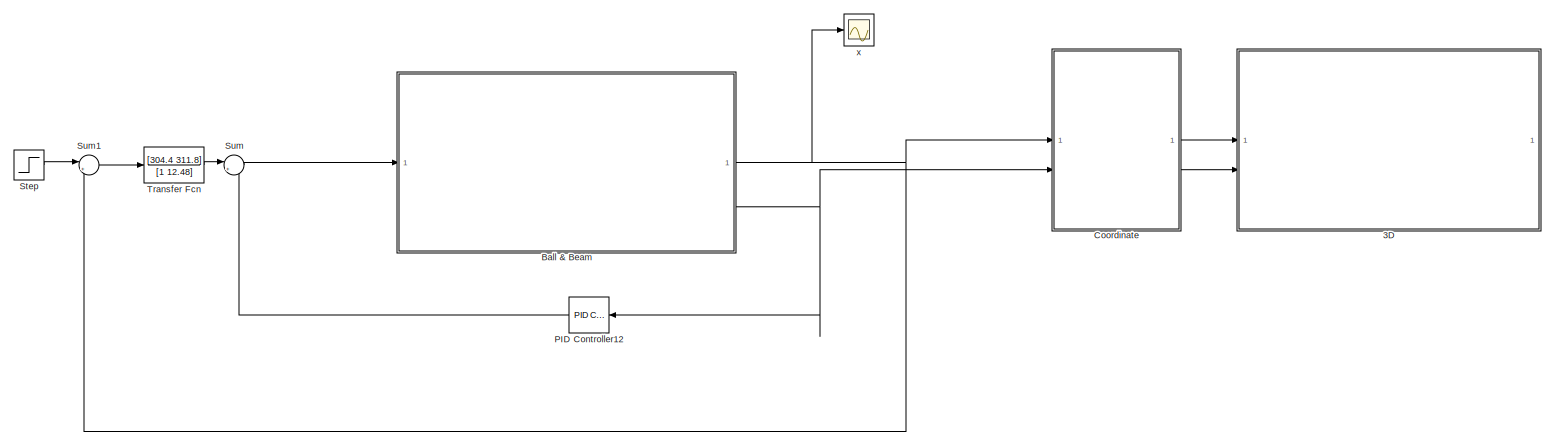
[diagram: root canvas - part 1/1, most of the canvas]
MODEL slx_0e48edb4119a
KIND model
CONFIG AbsTol = auto
CONFIG EnableMultiTasking = off
CONFIG FixedStep = auto
CONFIG MaxStep = auto
CONFIG MinStep = auto
CONFIG PreLoadFcn = m = 0.27;\nIb = 4.32e-5;\nr = 0.02;\nb = 1;\ng = 9.81;\nIw = 1.5 * 9.35e-2;\nK = 0.001;\nl = 0.49;
CONFIG RelTol = 1e-3
CONFIG SampleTimeConstraint = Unconstrained
CONFIG SolverName = VariableStepAuto
CONFIG StartTime = 0.0
CONFIG StopTime = 10
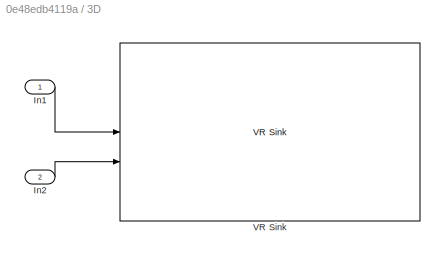
BLOCK [SubSystem] 3D
  Permissions = NoReadOrWrite
BLOCK [Inport] 3D/In1
BLOCK [Inport] 3D/In2
  Port = 2
BLOCK [Reference] 3D/VR Sink  REF=vrlib/VR Sink
  InstantiateOnLoad = on
  SourceBlock = vrlib/VR Sink
  SourceType = Virtual Reality Sink
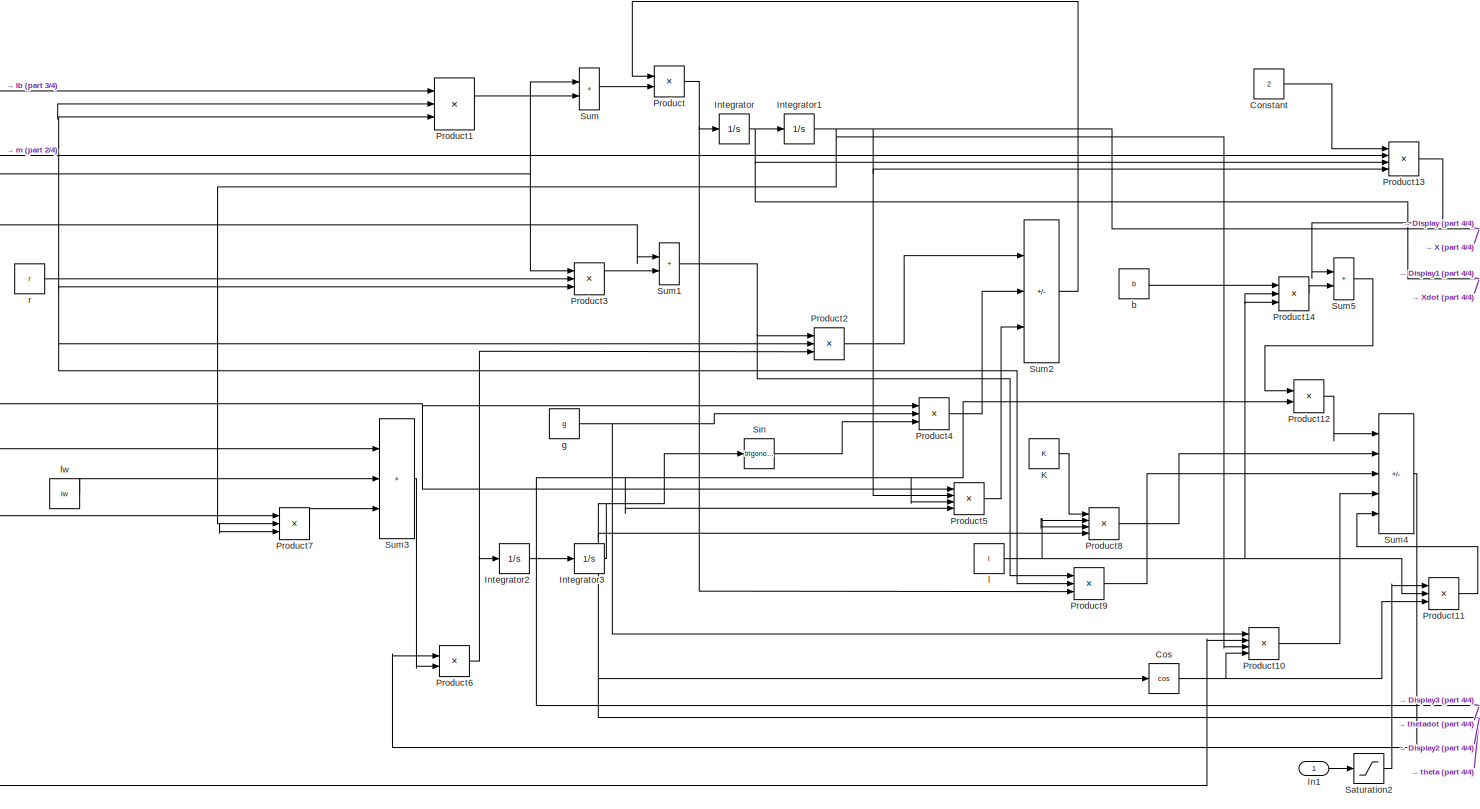
[diagram: Ball & Beam - part 1/4, most of the canvas]
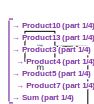
[diagram: Ball & Beam - part 2/4, top left region]
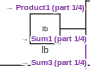
[diagram: Ball & Beam - part 3/4, top left region]
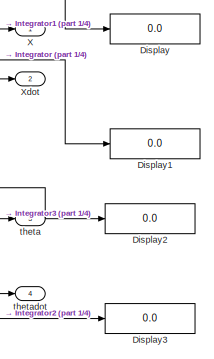
[diagram: Ball & Beam - part 4/4, middle right region]
BLOCK [SubSystem] Ball & Beam
  Permissions = NoReadOrWrite
BLOCK [Constant] Ball & Beam/Constant
  Value = 2
BLOCK [Trigonometry] Ball & Beam/Cos
  Operator = cos
BLOCK [Display] Ball & Beam/Display
  Decimation = 1
BLOCK [Display] Ball & Beam/Display1
  Decimation = 1
BLOCK [Display] Ball & Beam/Display2
  Decimation = 1
BLOCK [Display] Ball & Beam/Display3
  Decimation = 1
BLOCK [Inport] Ball & Beam/In1
BLOCK [Integrator] Ball & Beam/Integrator
BLOCK [Integrator] Ball & Beam/Integrator1
BLOCK [Integrator] Ball & Beam/Integrator2
BLOCK [Integrator] Ball & Beam/Integrator3
BLOCK [Constant] Ball & Beam/K
  Value = K
BLOCK [Product] Ball & Beam/Product
  Inputs = */
BLOCK [Product] Ball & Beam/Product1
  Inputs = *//
BLOCK [Product] Ball & Beam/Product10
  Inputs = ****
BLOCK [Product] Ball & Beam/Product11
  Inputs = ***
BLOCK [Product] Ball & Beam/Product12
  Inputs = **
BLOCK [Product] Ball & Beam/Product13
  Inputs = ****
BLOCK [Product] Ball & Beam/Product14
  Inputs = ***
BLOCK [Product] Ball & Beam/Product2
  Inputs = */*
BLOCK [Product] Ball & Beam/Product3
  Inputs = ***
BLOCK [Product] Ball & Beam/Product4
  Inputs = ***
BLOCK [Product] Ball & Beam/Product5
  Inputs = ****
BLOCK [Product] Ball & Beam/Product6
  Inputs = */
BLOCK [Product] Ball & Beam/Product7
  Inputs = ***
BLOCK [Product] Ball & Beam/Product8
  Inputs = ****
BLOCK [Product] Ball & Beam/Product9
  Inputs = */*
BLOCK [Saturate] Ball & Beam/Saturation2
  LowerLimit = -5
  UpperLimit = 5
BLOCK [Trigonometry] Ball & Beam/Sin
BLOCK [Sum] Ball & Beam/Sum
  IconShape = rectangular
  Inputs = |++
BLOCK [Sum] Ball & Beam/Sum1
  IconShape = rectangular
  Inputs = |++
BLOCK [Sum] Ball & Beam/Sum2
  IconShape = rectangular
  Inputs = |-++
BLOCK [Sum] Ball & Beam/Sum3
  IconShape = rectangular
  Inputs = |+++
BLOCK [Sum] Ball & Beam/Sum4
  IconShape = rectangular
  Inputs = |---++
BLOCK [Sum] Ball & Beam/Sum5
  IconShape = rectangular
  Inputs = |++
BLOCK [Outport] Ball & Beam/X
BLOCK [Outport] Ball & Beam/Xdot
  Port = 2
BLOCK [Constant] Ball & Beam/b
  Value = b
BLOCK [Constant] Ball & Beam/g
  Value = g
BLOCK [Constant] Ball & Beam/l
  Value = l
BLOCK [Constant] Ball & Beam/lb
  Value = Ib
BLOCK [Constant] Ball & Beam/lw
  Value = Iw
BLOCK [Constant] Ball & Beam/m
  Value = m
BLOCK [Constant] Ball & Beam/r
  Value = r
BLOCK [Outport] Ball & Beam/theta
  Port = 3
BLOCK [Outport] Ball & Beam/thetadot
  Port = 4
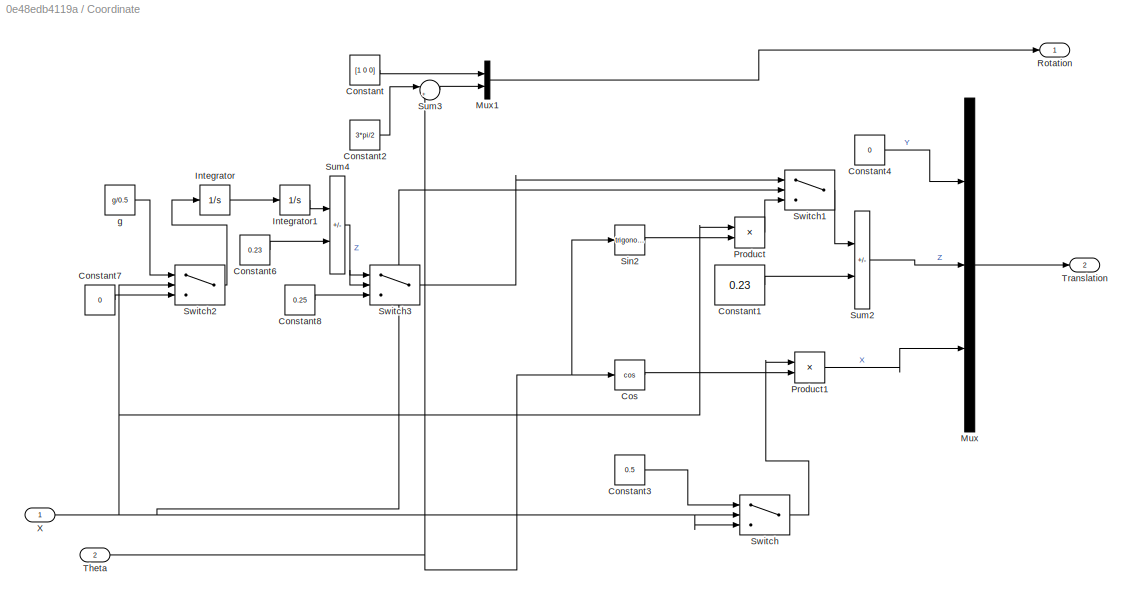
BLOCK [SubSystem] Coordinate
  Permissions = NoReadOrWrite
BLOCK [Constant] Coordinate/Constant
  Value = [1 0 0]
BLOCK [Constant] Coordinate/Constant1
  Value = 0.23
BLOCK [Constant] Coordinate/Constant2
  Value = 3*pi/2
BLOCK [Constant] Coordinate/Constant3
  Value = 0.5
BLOCK [Constant] Coordinate/Constant4
  Value = 0
BLOCK [Constant] Coordinate/Constant6
  Value = 0.23
BLOCK [Constant] Coordinate/Constant7
  Value = 0
BLOCK [Constant] Coordinate/Constant8
  Value = 0.25
BLOCK [Trigonometry] Coordinate/Cos
  Operator = cos
BLOCK [Integrator] Coordinate/Integrator
BLOCK [Integrator] Coordinate/Integrator1
BLOCK [Mux] Coordinate/Mux
  DisplayOption = bar
  Inputs = 3
BLOCK [Mux] Coordinate/Mux1
  DisplayOption = bar
  Inputs = 2
BLOCK [Product] Coordinate/Product
BLOCK [Product] Coordinate/Product1
BLOCK [Outport] Coordinate/Rotation
BLOCK [Trigonometry] Coordinate/Sin2
BLOCK [Sum] Coordinate/Sum2
  IconShape = rectangular
  Inputs = -+
BLOCK [Sum] Coordinate/Sum3
  Inputs = |++
BLOCK [Sum] Coordinate/Sum4
  IconShape = rectangular
  Inputs = -+
BLOCK [Switch] Coordinate/Switch
  Criteria = u2 > Threshold
  InputSameDT = off
  SaturateOnIntegerOverflow = off
  Threshold = 0.5
BLOCK [Switch] Coordinate/Switch1
  Criteria = u2 > Threshold
  InputSameDT = off
  SaturateOnIntegerOverflow = off
  Threshold = 0.5
BLOCK [Switch] Coordinate/Switch2
  Criteria = u2 > Threshold
  InputSameDT = off
  SaturateOnIntegerOverflow = off
  Threshold = 0.5
BLOCK [Switch] Coordinate/Switch3
  Criteria = u2 > Threshold
  InputSameDT = off
  SaturateOnIntegerOverflow = off
  Threshold = 0.02
BLOCK [Inport] Coordinate/Theta
  Port = 2
BLOCK [Outport] Coordinate/Translation
  Port = 2
BLOCK [Inport] Coordinate/X
BLOCK [Constant] Coordinate/g
  Value = g/0.5
BLOCK [Reference] PID Controller12  REF=slpidlib/PID Controller
  NameLocation = top
  SourceBlock = slpidlib/PID Controller
  SourceType = PID 1dof
BLOCK [Step] Step
  After = 0.1
  SampleTime = 0
  Time = 0
BLOCK [Sum] Sum
  Inputs = |+-
BLOCK [Sum] Sum1
  Inputs = |+-
BLOCK [TransferFcn] Transfer Fcn
  Denominator = [1 12.48]
  Numerator = [304.4 311.8]
BLOCK [Scope] x
  Floating = off
  NumInputPorts = 1
  ScopeSpecificationString = Simulink.scopes.TimeScopeBlockCfg('CurrentConfiguration', extmgr.ConfigurationSet(extmgr.Configuration('Core','General UI',true),extmgr.Configuration('Core','Source UI',true),extmgr.Configuration('Sources','WiredSimulink',true),extmgr.Configuration('Visuals','Time Domain',true,'SerializedDisplays',{struct('MinYLimReal','-0.01716','MaxYLimReal','0.14369','YLabelReal','','MinYLimMag','0.00000','MaxY...<+1739ch>
LINE 3D/In1:1 -> 3D/VR Sink:1
LINE 3D/In2:1 -> 3D/VR Sink:2
LINE Ball & Beam/Constant:1 -> Ball & Beam/Product13:1
NET Ball & Beam/Cos:1 -> Ball & Beam/Product10:4, Ball & Beam/Product11:3
LINE Ball & Beam/In1:1 -> Ball & Beam/Saturation2:1
NET Ball & Beam/Integrator1:1 -> Ball & Beam/Display:1, Ball & Beam/Product10:3, Ball & Beam/Product13:4, Ball & Beam/Product5:2, Ball & Beam/Product7:2, Ball & Beam/Product7:3, Ball & Beam/X:1
NET Ball & Beam/Integrator2:1 -> Ball & Beam/Display3:1, Ball & Beam/Integrator3:1, Ball & Beam/Product12:2, Ball & Beam/Product5:3, Ball & Beam/Product5:4, Ball & Beam/thetadot:1
NET Ball & Beam/Integrator3:1 -> Ball & Beam/Cos:1, Ball & Beam/Display2:1, Ball & Beam/Product8:4, Ball & Beam/Sin:1, Ball & Beam/theta:1
NET Ball & Beam/Integrator:1 -> Ball & Beam/Display1:1, Ball & Beam/Integrator1:1, Ball & Beam/Product13:3, Ball & Beam/Xdot:1
LINE Ball & Beam/K:1 -> Ball & Beam/Product8:1
LINE Ball & Beam/Product10:1 -> Ball & Beam/Sum4:4
LINE Ball & Beam/Product11:1 -> Ball & Beam/Sum4:5
LINE Ball & Beam/Product12:1 -> Ball & Beam/Sum4:1
LINE Ball & Beam/Product13:1 -> Ball & Beam/Sum5:1
LINE Ball & Beam/Product14:1 -> Ball & Beam/Sum5:2
LINE Ball & Beam/Product1:1 -> Ball & Beam/Sum:2
LINE Ball & Beam/Product2:1 -> Ball & Beam/Sum2:1
LINE Ball & Beam/Product3:1 -> Ball & Beam/Sum1:2
LINE Ball & Beam/Product4:1 -> Ball & Beam/Sum2:2
LINE Ball & Beam/Product5:1 -> Ball & Beam/Sum2:3
NET Ball & Beam/Product6:1 -> Ball & Beam/Integrator2:1, Ball & Beam/Product2:3
LINE Ball & Beam/Product7:1 -> Ball & Beam/Sum3:3
LINE Ball & Beam/Product8:1 -> Ball & Beam/Sum4:2
LINE Ball & Beam/Product9:1 -> Ball & Beam/Sum4:3
NET Ball & Beam/Product:1 -> Ball & Beam/Integrator:1, Ball & Beam/Product9:3
LINE Ball & Beam/Saturation2:1 -> Ball & Beam/Product11:1
LINE Ball & Beam/Sin:1 -> Ball & Beam/Product4:3
NET Ball & Beam/Sum1:1 -> Ball & Beam/Product2:1, Ball & Beam/Product9:1
LINE Ball & Beam/Sum2:1 -> Ball & Beam/Product:1
LINE Ball & Beam/Sum3:1 -> Ball & Beam/Product6:2
LINE Ball & Beam/Sum4:1 -> Ball & Beam/Product6:1
LINE Ball & Beam/Sum5:1 -> Ball & Beam/Product12:1
LINE Ball & Beam/Sum:1 -> Ball & Beam/Product:2
LINE Ball & Beam/b:1 -> Ball & Beam/Product14:1
NET Ball & Beam/g:1 -> Ball & Beam/Product10:1, Ball & Beam/Product4:2
NET Ball & Beam/l:1 -> Ball & Beam/Product11:2, Ball & Beam/Product14:2, Ball & Beam/Product14:3, Ball & Beam/Product8:2, Ball & Beam/Product8:3
NET Ball & Beam/lb:1 -> Ball & Beam/Product1:1, Ball & Beam/Sum1:1, Ball & Beam/Sum3:1
LINE Ball & Beam/lw:1 -> Ball & Beam/Sum3:2
NET Ball & Beam/m:1 -> Ball & Beam/Product10:2, Ball & Beam/Product13:2, Ball & Beam/Product3:1, Ball & Beam/Product4:1, Ball & Beam/Product5:1, Ball & Beam/Product7:1, Ball & Beam/Sum:1
NET Ball & Beam/r:1 -> Ball & Beam/Product1:2, Ball & Beam/Product1:3, Ball & Beam/Product2:2, Ball & Beam/Product3:2, Ball & Beam/Product3:3, Ball & Beam/Product9:2
NET Ball & Beam:1 -> Coordinate:1, Sum1:2, x:1
NET Ball & Beam:3 -> Coordinate:2, PID Controller12:1
LINE Coordinate/Constant1:1 -> Coordinate/Sum2:2
LINE Coordinate/Constant2:1 -> Coordinate/Sum3:1
LINE Coordinate/Constant3:1 -> Coordinate/Switch:1
LINE Coordinate/Constant4:1 -> Coordinate/Mux:1
LINE Coordinate/Constant6:1 -> Coordinate/Sum4:2
LINE Coordinate/Constant7:1 -> Coordinate/Switch2:3
LINE Coordinate/Constant8:1 -> Coordinate/Switch3:3
LINE Coordinate/Constant:1 -> Coordinate/Mux1:1
LINE Coordinate/Cos:1 -> Coordinate/Product1:2
LINE Coordinate/Integrator1:1 -> Coordinate/Sum4:1
LINE Coordinate/Integrator:1 -> Coordinate/Integrator1:1
LINE Coordinate/Mux1:1 -> Coordinate/Rotation:1
LINE Coordinate/Mux:1 -> Coordinate/Translation:1
LINE Coordinate/Product1:1 -> Coordinate/Mux:3
LINE Coordinate/Product:1 -> Coordinate/Switch1:3
LINE Coordinate/Sin2:1 -> Coordinate/Product:2
LINE Coordinate/Sum2:1 -> Coordinate/Mux:2
LINE Coordinate/Sum3:1 -> Coordinate/Mux1:2
NET Coordinate/Sum4:1 -> Coordinate/Switch3:1, Coordinate/Switch3:2
LINE Coordinate/Switch1:1 -> Coordinate/Sum2:1
LINE Coordinate/Switch2:1 -> Coordinate/Integrator:1
LINE Coordinate/Switch3:1 -> Coordinate/Switch1:1
LINE Coordinate/Switch:1 -> Coordinate/Product1:1
NET Coordinate/Theta:1 -> Coordinate/Cos:1, Coordinate/Sin2:1, Coordinate/Sum3:2
NET Coordinate/X:1 -> Coordinate/Product:1, Coordinate/Switch1:2, Coordinate/Switch2:2, Coordinate/Switch:2, Coordinate/Switch:3
LINE Coordinate/g:1 -> Coordinate/Switch2:1
LINE Coordinate:1 -> 3D:1
LINE Coordinate:2 -> 3D:2
LINE PID Controller12:1 -> Sum:2
LINE Step:1 -> Sum1:1
LINE Sum1:1 -> Transfer Fcn:1
LINE Sum:1 -> Ball & Beam:1
LINE Transfer Fcn:1 -> Sum:1
note: NET lines group one-source signal fan-out (src -> all destinations, sorted); 1:1 wires keep LINE
